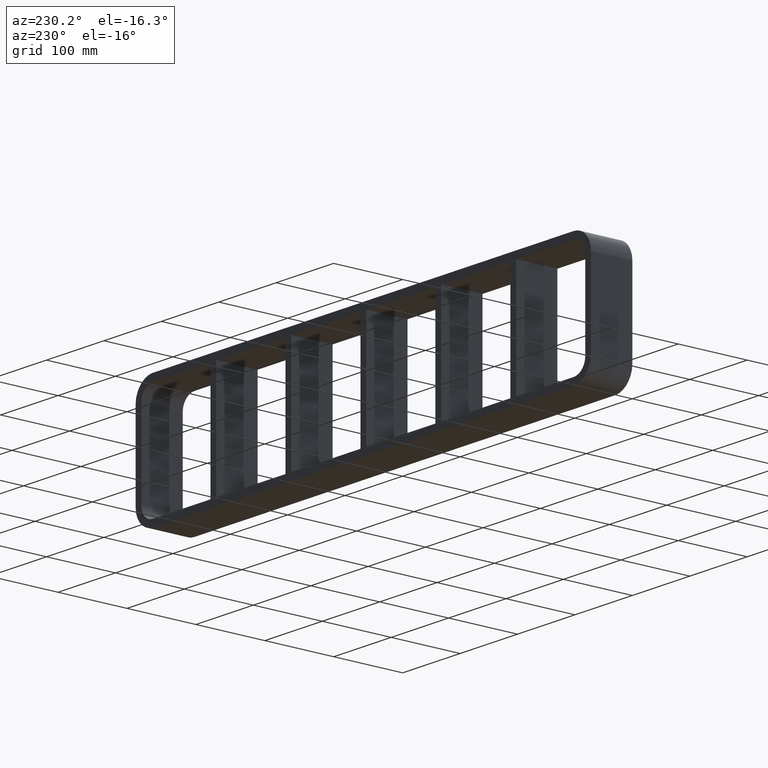
[diagram: clean part render]
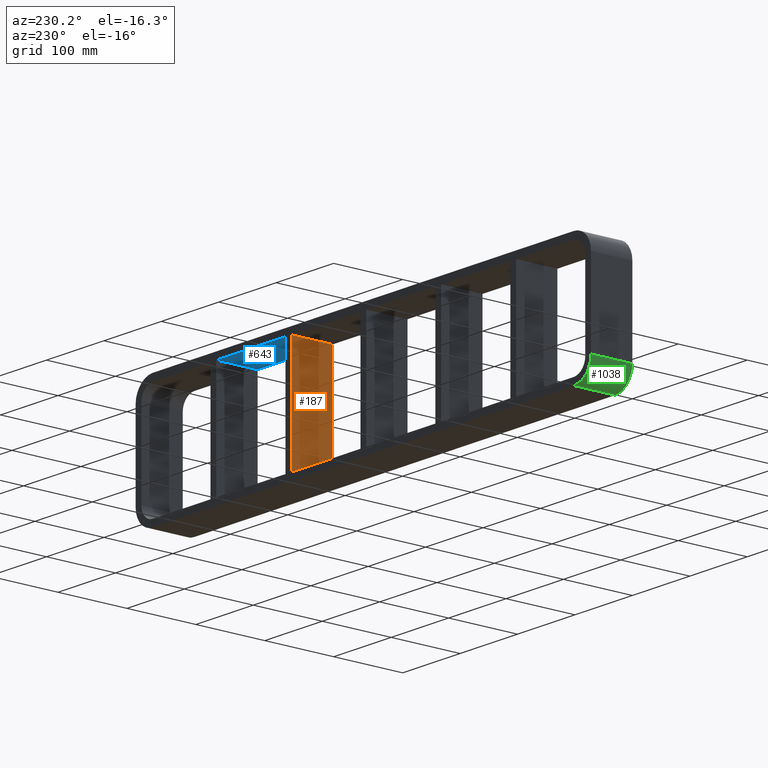
[diagram: same view with three faces highlighted in distinct colors, each labeled with its STEP entity id]
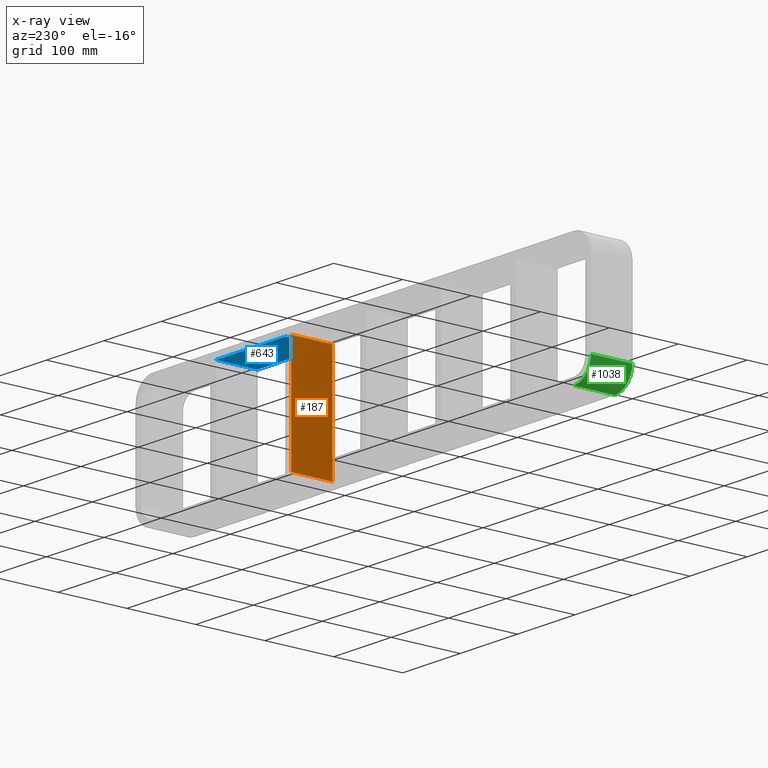
[diagram: x-ray of the same camera — body ghosted, the three highlighted faces saturated]
A machine part, auxiliary view with three faces highlighted in distinct colors.
The next image is the same camera in x-ray (body ghosted, the three faces saturated) — at least one of them is partly hidden behind the body in this view.
Their STEP definitions:

[orange] entity #187 — the highlighted planar face has unit normal (-1, 0, 0).
#148=CARTESIAN_POINT('',(125.49999999999869,-3.0,-79.750000000000014));
#149=DIRECTION('',(-1.0,0.0,0.0));
#150=DIRECTION('',(0.0,0.0,1.0));
#151=AXIS2_PLACEMENT_3D('',#148,#149,#150);
#152=PLANE('',#151);
#153=CARTESIAN_POINT('',(125.49999999999869,-3.0,-79.750000000000014));
#154=VERTEX_POINT('',#153);
#155=CARTESIAN_POINT('',(125.49999999999866,-3.0,79.750000000000014));
#156=VERTEX_POINT('',#155);
#157=CARTESIAN_POINT('',(125.49999999999869,-3.0,-79.750000000000014));
#158=DIRECTION('',(0.0,0.0,1.0));
#159=VECTOR('',#158,159.50000000000003);
#160=LINE('',#157,#159);
#161=EDGE_CURVE('',#154,#156,#160,.T.);
#162=ORIENTED_EDGE('',*,*,#161,.T.);
#163=CARTESIAN_POINT('',(125.49999999999866,57.0,79.750000000000014));
#164=VERTEX_POINT('',#163);
#165=CARTESIAN_POINT('',(125.49999999999868,57.000000000000007,79.750000000000014));
#166=DIRECTION('',(0.0,-1.0,0.0));
#167=VECTOR('',#166,60.000000000000007);
#168=LINE('',#165,#167);
#169=EDGE_CURVE('',#164,#156,#168,.T.);
#170=ORIENTED_EDGE('',*,*,#169,.F.);
#171=CARTESIAN_POINT('',(125.49999999999869,57.0,-79.750000000000014));
#172=VERTEX_POINT('',#171);
#173=CARTESIAN_POINT('',(125.49999999999869,57.0,-79.750000000000014));
#174=DIRECTION('',(0.0,0.0,1.0));
#175=VECTOR('',#174,159.50000000000003);
#176=LINE('',#173,#175);
#177=EDGE_CURVE('',#172,#164,#176,.T.);
#178=ORIENTED_EDGE('',*,*,#177,.F.);
#179=CARTESIAN_POINT('',(125.49999999999869,-3.0,-79.750000000000014));
#180=DIRECTION('',(0.0,1.0,0.0));
#181=VECTOR('',#180,60.000000000000007);
#182=LINE('',#179,#181);
#183=EDGE_CURVE('',#154,#172,#182,.T.);
#184=ORIENTED_EDGE('',*,*,#183,.F.);
#185=EDGE_LOOP('',(#162,#170,#178,#184));
#186=FACE_OUTER_BOUND('',#185,.T.);
#187=ADVANCED_FACE('',(#186),#152,.T.);

[blue] entity #643 — the highlighted planar face has unit normal (0, 0, 1).
#75=CARTESIAN_POINT('',(255.99999999999866,-3.0,79.750000000000014));
#76=VERTEX_POINT('',#75);
#83=CARTESIAN_POINT('',(255.99999999999866,57.0,79.750000000000014));
#84=VERTEX_POINT('',#83);
#85=CARTESIAN_POINT('',(255.99999999999866,57.000000000000007,79.750000000000014));
#86=DIRECTION('',(0.0,-1.0,0.0));
#87=VECTOR('',#86,60.000000000000007);
#88=LINE('',#85,#87);
#89=EDGE_CURVE('',#84,#76,#88,.T.);
#193=CARTESIAN_POINT('',(135.49999999999642,-3.0,79.750000000000014));
#194=VERTEX_POINT('',#193);
#211=CARTESIAN_POINT('',(135.49999999999642,57.0,79.750000000000014));
#212=VERTEX_POINT('',#211);
#219=CARTESIAN_POINT('',(135.49999999999642,-3.0,79.750000000000014));
#220=DIRECTION('',(0.0,1.0,0.0));
#221=VECTOR('',#220,60.000000000000007);
#222=LINE('',#219,#221);
#223=EDGE_CURVE('',#194,#212,#222,.T.);
#622=CARTESIAN_POINT('',(-386.50000000000006,0.0,79.750000000000014));
#623=DIRECTION('',(0.0,0.0,1.0));
#624=DIRECTION('',(1.0,0.0,0.0));
#625=AXIS2_PLACEMENT_3D('',#622,#623,#624);
#626=PLANE('',#625);
#627=ORIENTED_EDGE('',*,*,#89,.T.);
#628=CARTESIAN_POINT('',(135.49999999999645,-3.0,79.750000000000014));
#629=DIRECTION('',(1.0,0.0,0.0));
#630=VECTOR('',#629,120.50000000000222);
#631=LINE('',#628,#630);
#632=EDGE_CURVE('',#194,#76,#631,.T.);
#633=ORIENTED_EDGE('',*,*,#632,.F.);
#634=ORIENTED_EDGE('',*,*,#223,.T.);
#635=CARTESIAN_POINT('',(255.99999999999866,57.0,79.750000000000014));
#636=DIRECTION('',(-1.0,0.0,0.0));
#637=VECTOR('',#636,120.50000000000222);
#638=LINE('',#635,#637);
#639=EDGE_CURVE('',#84,#212,#638,.T.);
#640=ORIENTED_EDGE('',*,*,#639,.F.);
#641=EDGE_LOOP('',(#627,#633,#634,#640));
#642=FACE_OUTER_BOUND('',#641,.T.);
#643=ADVANCED_FACE('',(#642),#626,.F.);

[green] entity #1038 — the highlighted cylindrical surface (edge-blend (fillet) strip) has radius 30 mm, axis along (0, 1, 0).
#850=CARTESIAN_POINT('',(-396.50000000000006,-3.0,-59.750000000000014));
#851=VERTEX_POINT('',#850);
#858=CARTESIAN_POINT('',(-366.50000000000006,-3.0,-89.750000000000014));
#859=VERTEX_POINT('',#858);
#860=CARTESIAN_POINT('',(-366.50000000000006,-3.0,-59.750000000000014));
#861=DIRECTION('',(0.0,1.0,0.0));
#862=DIRECTION('',(-0.707106781186547,0.0,-0.707106781186547));
#863=AXIS2_PLACEMENT_3D('',#860,#861,#862);
#864=CIRCLE('',#863,30.0);
#865=EDGE_CURVE('',#859,#851,#864,.T.);
#1007=CARTESIAN_POINT('',(-366.50000000000006,0.0,-59.750000000000014));
#1008=DIRECTION('',(0.0,1.0,0.0));
#1009=DIRECTION('',(-0.707106781186547,0.0,-0.707106781186547));
#1010=AXIS2_PLACEMENT_3D('',#1007,#1008,#1009);
#1011=CYLINDRICAL_SURFACE('',#1010,30.000000000000004);
#1012=CARTESIAN_POINT('',(-396.50000000000006,57.0,-59.750000000000014));
#1013=VERTEX_POINT('',#1012);
#1014=CARTESIAN_POINT('',(-366.50000000000006,57.0,-89.750000000000014));
#1015=VERTEX_POINT('',#1014);
#1016=CARTESIAN_POINT('',(-366.50000000000006,57.0,-59.750000000000014));
#1017=DIRECTION('',(0.0,-1.0,0.0));
#1018=DIRECTION('',(-0.707106781186547,0.0,-0.707106781186547));
#1019=AXIS2_PLACEMENT_3D('',#1016,#1017,#1018);
#1020=CIRCLE('',#1019,30.0);
#1021=EDGE_CURVE('',#1013,#1015,#1020,.T.);
#1022=ORIENTED_EDGE('',*,*,#1021,.T.);
#1023=CARTESIAN_POINT('',(-366.50000000000006,57.0,-89.750000000000014));
#1024=DIRECTION('',(0.0,-1.0,0.0));
#1025=VECTOR('',#1024,60.0);
#1026=LINE('',#1023,#1025);
#1027=EDGE_CURVE('',#1015,#859,#1026,.T.);
#1028=ORIENTED_EDGE('',*,*,#1027,.T.);
#1029=ORIENTED_EDGE('',*,*,#865,.T.);
#1030=CARTESIAN_POINT('',(-396.50000000000006,-3.0,-59.750000000000014));
#1031=DIRECTION('',(0.0,1.0,0.0));
#1032=VECTOR('',#1031,60.0);
#1033=LINE('',#1030,#1032);
#1034=EDGE_CURVE('',#851,#1013,#1033,.T.);
#1035=ORIENTED_EDGE('',*,*,#1034,.T.);
#1036=EDGE_LOOP('',(#1022,#1028,#1029,#1035));
#1037=FACE_OUTER_BOUND('',#1036,.T.);
#1038=ADVANCED_FACE('',(#1037),#1011,.T.);